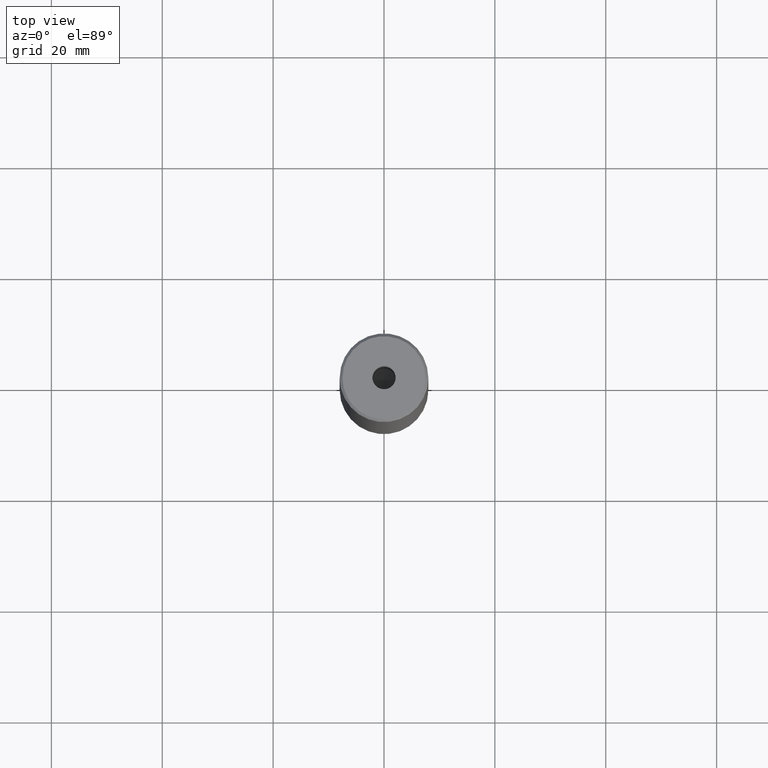
[diagram: clean part render]
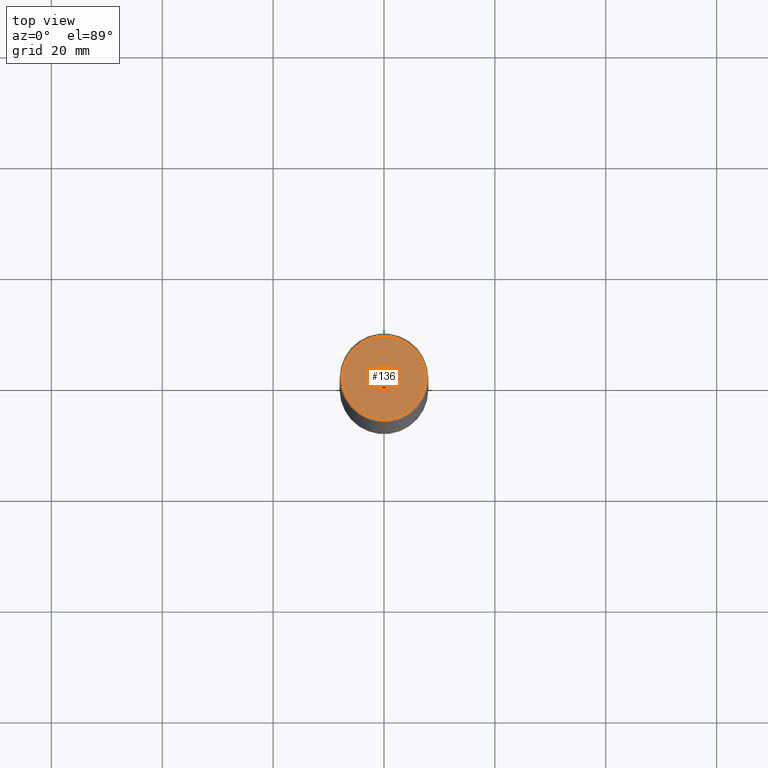
[diagram: same view with one face highlighted and labeled with its STEP entity id]
A machine part, top view. The second image highlights one B-rep face of the part: STEP entity #136.
In plain terms, the highlighted planar face has unit normal (0, -0, 1).
Its self-contained STEP definition (entity closure, byte-faithful):
#7 = AXIS2_PLACEMENT_3D ( 'NONE', #332, #378, #202 ) ;
#29 = CARTESIAN_POINT ( 'NONE',  ( 7.500000000000007105, 9.491012693391991731E-16, 0.000000000000000000 ) ) ;
#41 = ORIENTED_EDGE ( 'NONE', *, *, #558, .F. ) ;
#49 = EDGE_CURVE ( 'NONE', #585, #64, #516, .T. ) ;
#54 = ORIENTED_EDGE ( 'NONE', *, *, #49, .F. ) ;
#64 = VERTEX_POINT ( 'NONE', #200 ) ;
#76 = FACE_BOUND ( 'NONE', #238, .T. ) ;
#81 = CARTESIAN_POINT ( 'NONE',  ( 0.000000000000000000, 0.000000000000000000, 0.000000000000000000 ) ) ;
#124 = CARTESIAN_POINT ( 'NONE',  ( 2.099999999999998757, 0.000000000000000000, -1.990051048614449116E-16 ) ) ;
#136 = ADVANCED_FACE ( 'NONE', ( #76, #425 ), #171, .T. ) ;
#139 = DIRECTION ( 'NONE',  ( -0.000000000000000000, -0.000000000000000000, 1.000000000000000000 ) ) ;
#170 = DIRECTION ( 'NONE',  ( -0.000000000000000000, -0.000000000000000000, 1.000000000000000000 ) ) ;
#171 = PLANE ( 'NONE',  #7 ) ;
#176 = CARTESIAN_POINT ( 'NONE',  ( 0.000000000000000000, 0.000000000000000000, 0.000000000000000000 ) ) ;
#200 = CARTESIAN_POINT ( 'NONE',  ( -2.099999999999998757, 2.571758278209440478E-16, -1.990051048614449116E-16 ) ) ;
#202 = DIRECTION ( 'NONE',  ( 1.000000000000000000, 0.000000000000000000, 0.000000000000000000 ) ) ;
#210 = EDGE_CURVE ( 'NONE', #395, #264, #502, .T. ) ;
#233 = EDGE_LOOP ( 'NONE', ( #471, #565 ) ) ;
#238 = EDGE_LOOP ( 'NONE', ( #54, #41 ) ) ;
#241 = DIRECTION ( 'NONE',  ( -0.000000000000000000, -0.000000000000000000, 1.000000000000000000 ) ) ;
#262 = AXIS2_PLACEMENT_3D ( 'NONE', #408, #241, #330 ) ;
#264 = VERTEX_POINT ( 'NONE', #29 ) ;
#266 = CARTESIAN_POINT ( 'NONE',  ( 0.000000000000000000, 0.000000000000000000, -1.990051048614449116E-16 ) ) ;
#314 = CIRCLE ( 'NONE', #431, 7.500000000000007105 ) ;
#330 = DIRECTION ( 'NONE',  ( 1.000000000000000000, 0.000000000000000000, 0.000000000000000000 ) ) ;
#332 = CARTESIAN_POINT ( 'NONE',  ( 0.000000000000000000, 0.000000000000000000, 0.000000000000000000 ) ) ;
#359 = DIRECTION ( 'NONE',  ( -0.000000000000000000, -0.000000000000000000, 1.000000000000000000 ) ) ;
#378 = DIRECTION ( 'NONE',  ( 0.000000000000000000, -0.000000000000000000, 1.000000000000000000 ) ) ;
#395 = VERTEX_POINT ( 'NONE', #482 ) ;
#402 = CIRCLE ( 'NONE', #514, 2.099999999999998757 ) ;
#408 = CARTESIAN_POINT ( 'NONE',  ( 0.000000000000000000, 0.000000000000000000, -1.990051048614449116E-16 ) ) ;
#425 = FACE_OUTER_BOUND ( 'NONE', #233, .T. ) ;
#431 = AXIS2_PLACEMENT_3D ( 'NONE', #176, #139, #479 ) ;
#432 = EDGE_CURVE ( 'NONE', #264, #395, #314, .T. ) ;
#471 = ORIENTED_EDGE ( 'NONE', *, *, #210, .T. ) ;
#479 = DIRECTION ( 'NONE',  ( 1.000000000000000000, 0.000000000000000000, 0.000000000000000000 ) ) ;
#482 = CARTESIAN_POINT ( 'NONE',  ( -7.500000000000007105, 0.000000000000000000, 0.000000000000000000 ) ) ;
#502 = CIRCLE ( 'NONE', #577, 7.500000000000007105 ) ;
#509 = DIRECTION ( 'NONE',  ( 1.000000000000000000, 0.000000000000000000, 0.000000000000000000 ) ) ;
#514 = AXIS2_PLACEMENT_3D ( 'NONE', #266, #359, #539 ) ;
#516 = CIRCLE ( 'NONE', #262, 2.099999999999998757 ) ;
#539 = DIRECTION ( 'NONE',  ( 1.000000000000000000, 0.000000000000000000, 0.000000000000000000 ) ) ;
#558 = EDGE_CURVE ( 'NONE', #64, #585, #402, .T. ) ;
#565 = ORIENTED_EDGE ( 'NONE', *, *, #432, .T. ) ;
#577 = AXIS2_PLACEMENT_3D ( 'NONE', #81, #170, #509 ) ;
#585 = VERTEX_POINT ( 'NONE', #124 ) ;